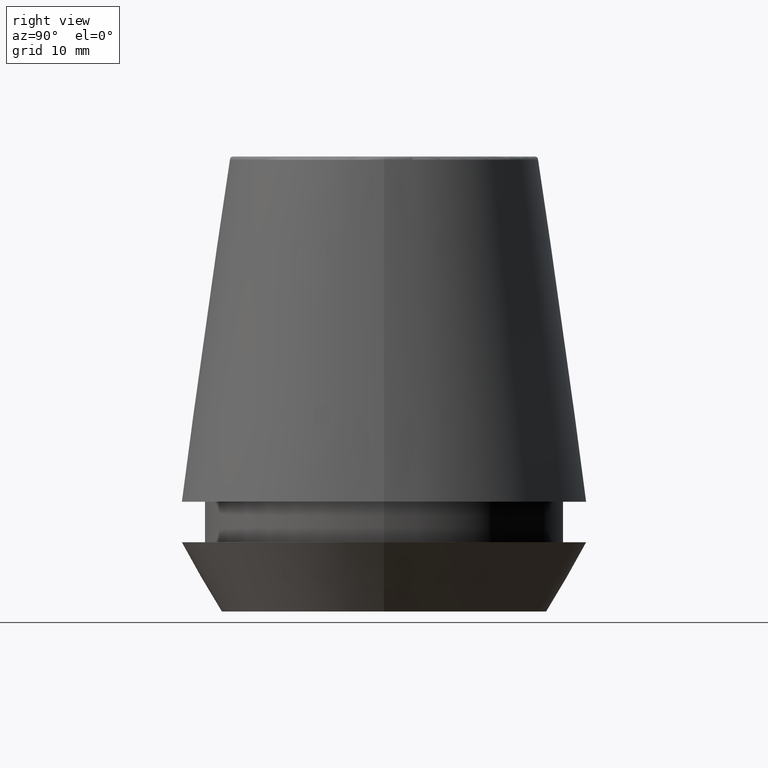
[diagram: clean part render]
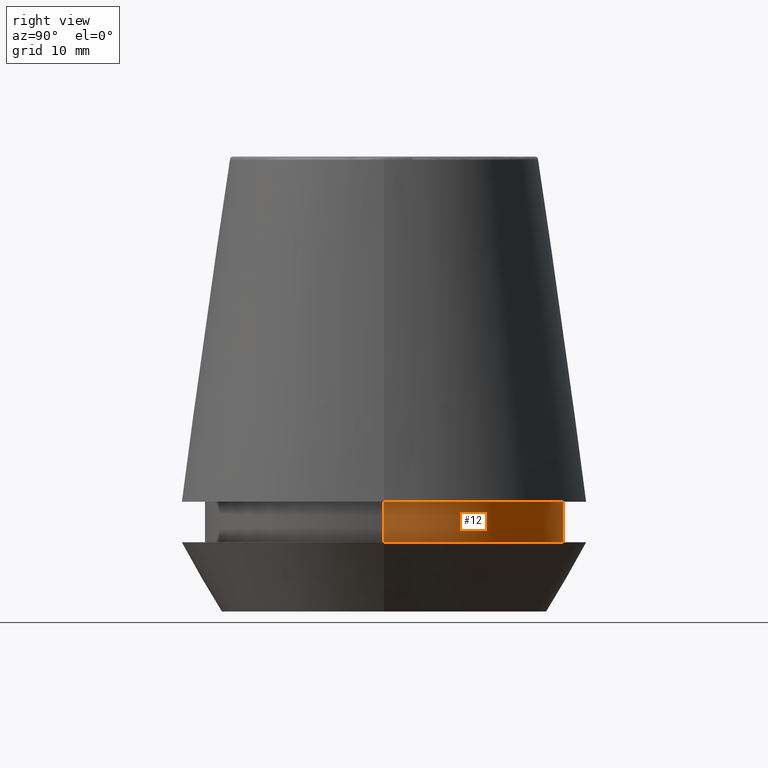
[diagram: same view with one face highlighted and labeled with its STEP entity id]
A machine part, right view. The second image highlights one B-rep face of the part: STEP entity #12.
In plain terms, the highlighted cylindrical surface (partial cylindrical patch) has radius 18.1 mm, axis along (-0, -0, 1).
Its self-contained STEP definition (entity closure, byte-faithful):
#5 = DIRECTION ( 'NONE',  ( -0.0000000000000000000, -0.0000000000000000000, 1.000000000000000000 ) ) ;
#11 = CARTESIAN_POINT ( 'NONE',  ( 18.10000000000000500, 0.0000000000000000000, 46.00000000000000000 ) ) ;
#12 = ADVANCED_FACE ( 'NONE', ( #89 ), #188, .T. ) ;
#19 = CARTESIAN_POINT ( 'NONE',  ( 18.10000000000000500, 0.0000000000000000000, 11.09999999999999800 ) ) ;
#32 = EDGE_CURVE ( 'NONE', #42, #158, #261, .T. ) ;
#41 = CARTESIAN_POINT ( 'NONE',  ( 0.0000000000000000000, 0.0000000000000000000, 6.999999999999999100 ) ) ;
#42 = VERTEX_POINT ( 'NONE', #19 ) ;
#53 = AXIS2_PLACEMENT_3D ( 'NONE', #95, #338, #147 ) ;
#66 = DIRECTION ( 'NONE',  ( -0.0000000000000000000, -0.0000000000000000000, 1.000000000000000000 ) ) ;
#68 = AXIS2_PLACEMENT_3D ( 'NONE', #171, #66, #149 ) ;
#75 = DIRECTION ( 'NONE',  ( -0.0000000000000000000, -0.0000000000000000000, 1.000000000000000000 ) ) ;
#89 = FACE_OUTER_BOUND ( 'NONE', #298, .T. ) ;
#95 = CARTESIAN_POINT ( 'NONE',  ( 0.0000000000000000000, 0.0000000000000000000, 11.09999999999999800 ) ) ;
#109 = VERTEX_POINT ( 'NONE', #335 ) ;
#147 = DIRECTION ( 'NONE',  ( 1.000000000000000000, 0.0000000000000000000, 0.0000000000000000000 ) ) ;
#149 = DIRECTION ( 'NONE',  ( 1.000000000000000000, 0.0000000000000000000, 0.0000000000000000000 ) ) ;
#152 = CARTESIAN_POINT ( 'NONE',  ( -18.10000000000000500, 2.216610706456710000E-015, 11.09999999999999800 ) ) ;
#158 = VERTEX_POINT ( 'NONE', #152 ) ;
#165 = ORIENTED_EDGE ( 'NONE', *, *, #201, .F. ) ;
#171 = CARTESIAN_POINT ( 'NONE',  ( 0.0000000000000000000, 0.0000000000000000000, 46.00000000000000000 ) ) ;
#183 = ORIENTED_EDGE ( 'NONE', *, *, #267, .T. ) ;
#185 = ORIENTED_EDGE ( 'NONE', *, *, #303, .T. ) ;
#188 = CYLINDRICAL_SURFACE ( 'NONE', #68, 18.10000000000000500 ) ;
#193 = CARTESIAN_POINT ( 'NONE',  ( -18.10000000000000100, 2.216610706456709600E-015, 6.999999999999999100 ) ) ;
#195 = CARTESIAN_POINT ( 'NONE',  ( -18.10000000000000500, 2.216610706456710000E-015, 46.00000000000000000 ) ) ;
#197 = AXIS2_PLACEMENT_3D ( 'NONE', #41, #75, #270 ) ;
#201 = EDGE_CURVE ( 'NONE', #109, #42, #284, .T. ) ;
#217 = VERTEX_POINT ( 'NONE', #193 ) ;
#233 = ORIENTED_EDGE ( 'NONE', *, *, #32, .F. ) ;
#246 = DIRECTION ( 'NONE',  ( -0.0000000000000000000, -0.0000000000000000000, 1.000000000000000000 ) ) ;
#261 = CIRCLE ( 'NONE', #53, 18.10000000000000500 ) ;
#267 = EDGE_CURVE ( 'NONE', #217, #158, #306, .T. ) ;
#270 = DIRECTION ( 'NONE',  ( 1.000000000000000000, 0.0000000000000000000, 0.0000000000000000000 ) ) ;
#284 = LINE ( 'NONE', #11, #286 ) ;
#286 = VECTOR ( 'NONE', #246, 1000.000000000000000 ) ;
#298 = EDGE_LOOP ( 'NONE', ( #185, #183, #233, #165 ) ) ;
#303 = EDGE_CURVE ( 'NONE', #109, #217, #315, .T. ) ;
#306 = LINE ( 'NONE', #195, #313 ) ;
#313 = VECTOR ( 'NONE', #5, 1000.000000000000000 ) ;
#315 = CIRCLE ( 'NONE', #197, 18.10000000000000100 ) ;
#335 = CARTESIAN_POINT ( 'NONE',  ( 18.10000000000000100, 0.0000000000000000000, 6.999999999999999100 ) ) ;
#338 = DIRECTION ( 'NONE',  ( -0.0000000000000000000, -0.0000000000000000000, 1.000000000000000000 ) ) ;